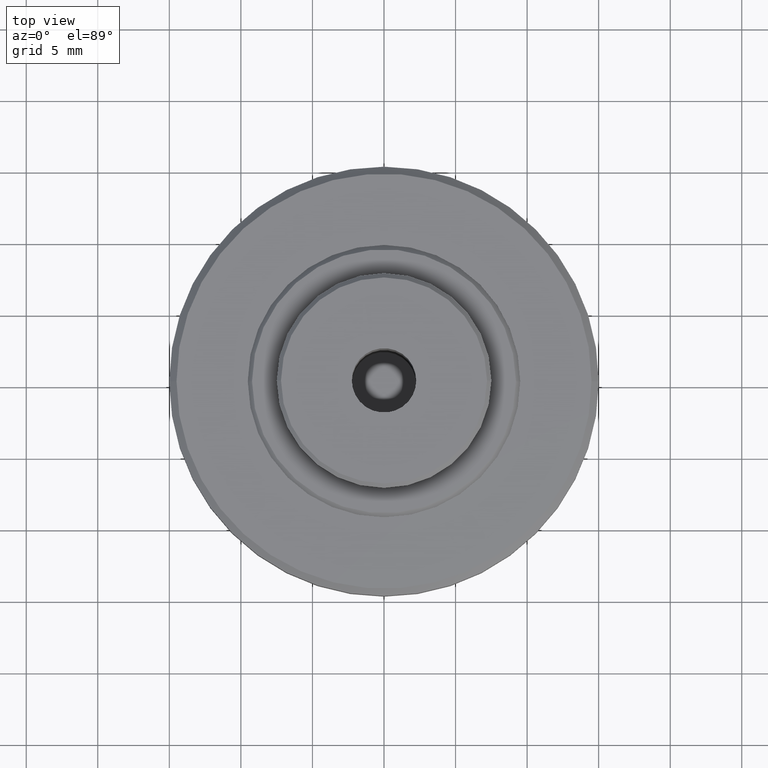
[diagram: clean part render]
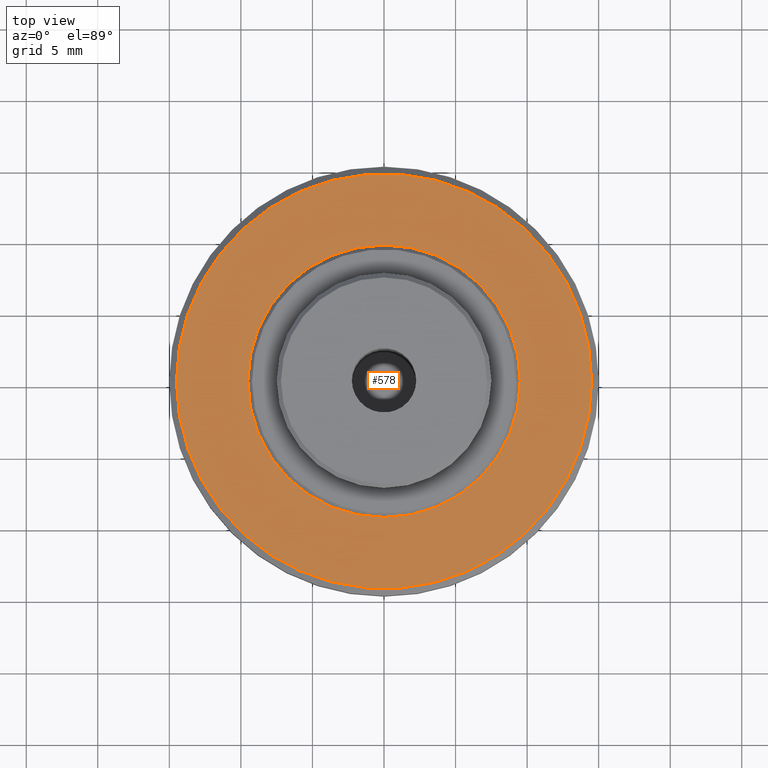
[diagram: same view with one face highlighted and labeled with its STEP entity id]
A machine part, top view. The second image highlights one B-rep face of the part: STEP entity #578.
In plain terms, the highlighted planar face has unit normal (0, 0, -1).
Its self-contained STEP definition (entity closure, byte-faithful):
#6 = CIRCLE ( 'NONE', #1489, 9.519999999999999600 ) ;
#32 = CARTESIAN_POINT ( 'NONE',  ( -9.519999999999999600, 0.0000000000000000000, 12.75000000000000200 ) ) ;
#47 = DIRECTION ( 'NONE',  ( -1.000000000000000000, 0.0000000000000000000, 0.0000000000000000000 ) ) ;
#80 = EDGE_LOOP ( 'NONE', ( #198, #1689 ) ) ;
#124 = EDGE_CURVE ( 'NONE', #1389, #899, #6, .T. ) ;
#198 = ORIENTED_EDGE ( 'NONE', *, *, #1447, .F. ) ;
#334 = DIRECTION ( 'NONE',  ( -0.0000000000000000000, -0.0000000000000000000, 1.000000000000000000 ) ) ;
#346 = AXIS2_PLACEMENT_3D ( 'NONE', #823, #1997, #999 ) ;
#361 = AXIS2_PLACEMENT_3D ( 'NONE', #765, #1608, #602 ) ;
#435 = PLANE ( 'NONE',  #361 ) ;
#443 = ORIENTED_EDGE ( 'NONE', *, *, #1532, .T. ) ;
#497 = CARTESIAN_POINT ( 'NONE',  ( 0.0000000000000000000, 0.0000000000000000000, 12.75000000000000200 ) ) ;
#578 = ADVANCED_FACE ( 'NONE', ( #1424, #1476 ), #435, .F. ) ;
#602 = DIRECTION ( 'NONE',  ( -1.000000000000000000, 0.0000000000000000000, 0.0000000000000000000 ) ) ;
#765 = CARTESIAN_POINT ( 'NONE',  ( 14.67399999999999900, -14.67399999999999900, 12.75000000000000200 ) ) ;
#769 = CARTESIAN_POINT ( 'NONE',  ( 14.49999999999996300, 1.806354028742343400E-015, 12.75000000000003900 ) ) ;
#823 = CARTESIAN_POINT ( 'NONE',  ( 0.0000000000000000000, 0.0000000000000000000, 12.75000000000000200 ) ) ;
#826 = CIRCLE ( 'NONE', #1027, 14.49999999999996300 ) ;
#827 = CARTESIAN_POINT ( 'NONE',  ( -14.49999999999996300, 0.0000000000000000000, 12.75000000000003900 ) ) ;
#829 = CIRCLE ( 'NONE', #346, 9.519999999999999600 ) ;
#837 = DIRECTION ( 'NONE',  ( -0.0000000000000000000, -0.0000000000000000000, 1.000000000000000000 ) ) ;
#847 = CIRCLE ( 'NONE', #1203, 14.49999999999996300 ) ;
#894 = ORIENTED_EDGE ( 'NONE', *, *, #1780, .T. ) ;
#899 = VERTEX_POINT ( 'NONE', #32 ) ;
#999 = DIRECTION ( 'NONE',  ( -1.000000000000000000, 0.0000000000000000000, 0.0000000000000000000 ) ) ;
#1027 = AXIS2_PLACEMENT_3D ( 'NONE', #1845, #837, #2014 ) ;
#1203 = AXIS2_PLACEMENT_3D ( 'NONE', #1340, #334, #1504 ) ;
#1246 = VERTEX_POINT ( 'NONE', #769 ) ;
#1304 = DIRECTION ( 'NONE',  ( -0.0000000000000000000, -0.0000000000000000000, 1.000000000000000000 ) ) ;
#1330 = EDGE_LOOP ( 'NONE', ( #443, #894 ) ) ;
#1340 = CARTESIAN_POINT ( 'NONE',  ( 0.0000000000000000000, 0.0000000000000000000, 12.75000000000003900 ) ) ;
#1389 = VERTEX_POINT ( 'NONE', #1811 ) ;
#1424 = FACE_BOUND ( 'NONE', #80, .T. ) ;
#1447 = EDGE_CURVE ( 'NONE', #899, #1389, #829, .T. ) ;
#1476 = FACE_OUTER_BOUND ( 'NONE', #1330, .T. ) ;
#1489 = AXIS2_PLACEMENT_3D ( 'NONE', #497, #1304, #47 ) ;
#1504 = DIRECTION ( 'NONE',  ( -1.000000000000000000, 0.0000000000000000000, 0.0000000000000000000 ) ) ;
#1532 = EDGE_CURVE ( 'NONE', #1753, #1246, #826, .T. ) ;
#1608 = DIRECTION ( 'NONE',  ( 0.0000000000000000000, 0.0000000000000000000, -1.000000000000000000 ) ) ;
#1689 = ORIENTED_EDGE ( 'NONE', *, *, #124, .F. ) ;
#1753 = VERTEX_POINT ( 'NONE', #827 ) ;
#1780 = EDGE_CURVE ( 'NONE', #1246, #1753, #847, .T. ) ;
#1811 = CARTESIAN_POINT ( 'NONE',  ( 9.519999999999999600, 1.165863752788280200E-015, 12.75000000000000200 ) ) ;
#1845 = CARTESIAN_POINT ( 'NONE',  ( 0.0000000000000000000, 0.0000000000000000000, 12.75000000000003900 ) ) ;
#1997 = DIRECTION ( 'NONE',  ( -0.0000000000000000000, -0.0000000000000000000, 1.000000000000000000 ) ) ;
#2014 = DIRECTION ( 'NONE',  ( -1.000000000000000000, 0.0000000000000000000, 0.0000000000000000000 ) ) ;